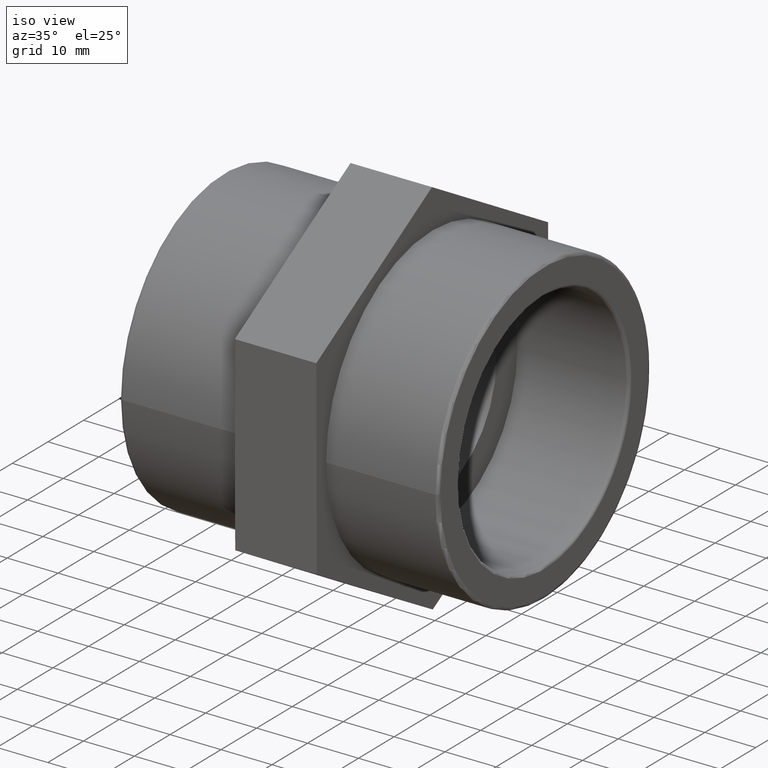
[diagram: clean part render]
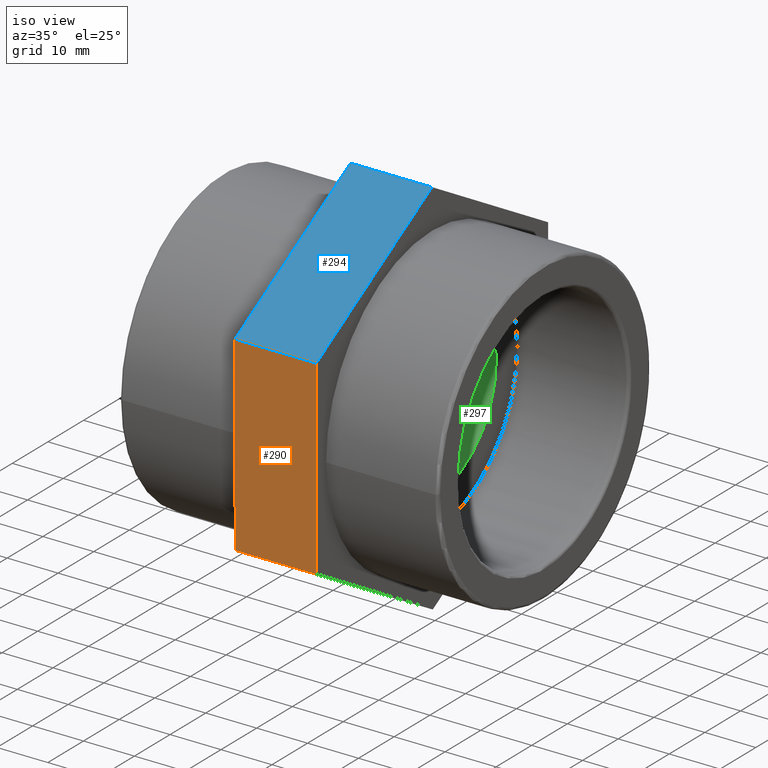
[diagram: same view with three faces highlighted in distinct colors, each labeled with its STEP entity id]
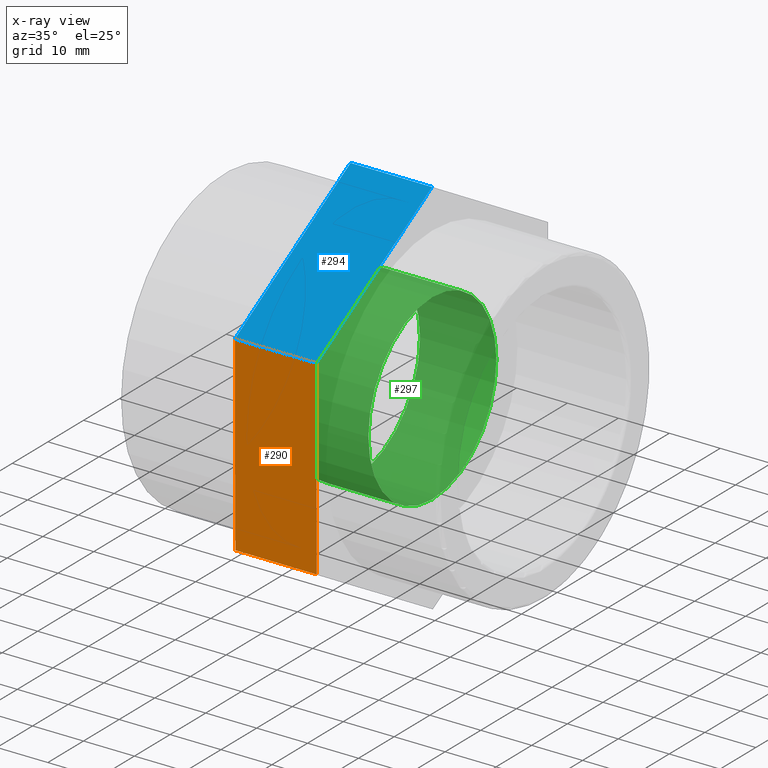
[diagram: x-ray of the same camera — body ghosted, the three highlighted faces saturated]
A machine part, iso view with three faces highlighted in distinct colors.
The next image is the same camera in x-ray (body ghosted, the three faces saturated) — at least one of them is partly hidden behind the body in this view.
Their STEP definitions:

[orange] entity #290 — the highlighted planar face has unit normal (0, -1, -0.003).
#15=LINE('',#466,#33);
#16=LINE('',#468,#34);
#17=LINE('',#470,#35);
#18=LINE('',#471,#36);
#33=VECTOR('',#386,37.5277674973257);
#34=VECTOR('',#387,16.);
#35=VECTOR('',#388,37.5277674973257);
#36=VECTOR('',#389,16.);
#58=PLANE('',#325);
#93=FACE_OUTER_BOUND('',#124,.T.);
#124=EDGE_LOOP('',(#232,#233,#234,#235));
#166=VERTEX_POINT('',#464);
#167=VERTEX_POINT('',#465);
#168=VERTEX_POINT('',#467);
#169=VERTEX_POINT('',#469);
#192=EDGE_CURVE('',#166,#167,#15,.T.);
#193=EDGE_CURVE('',#168,#167,#16,.T.);
#194=EDGE_CURVE('',#168,#169,#17,.T.);
#195=EDGE_CURVE('',#169,#166,#18,.T.);
#232=ORIENTED_EDGE('',*,*,#192,.T.);
#233=ORIENTED_EDGE('',*,*,#193,.F.);
#234=ORIENTED_EDGE('',*,*,#194,.T.);
#235=ORIENTED_EDGE('',*,*,#195,.T.);
#290=ADVANCED_FACE('',(#93),#58,.T.);
#325=AXIS2_PLACEMENT_3D('',#463,#384,#385);
#384=DIRECTION('center_axis',(1.85036358388747E-16,-0.999995609627469,-0.00296322894591864));
#385=DIRECTION('ref_axis',(0.,-0.00296322894591867,0.999995609627469));
#386=DIRECTION('',(-5.44336326564006E-19,0.00296322894591864,-0.999995609627469));
#387=DIRECTION('',(-1.,-1.85037170770858E-16,0.));
#388=DIRECTION('',(5.44336326564006E-19,-0.00296322894591864,0.999995609627469));
#389=DIRECTION('',(-1.,-1.85037170770858E-16,0.));
#463=CARTESIAN_POINT('Origin',(9.50000000000001,-32.4442556294309,-18.8601063089654));
#464=CARTESIAN_POINT('',(-6.49999999999999,-32.5554589963547,18.6674964274807));
#465=CARTESIAN_POINT('',(-6.49999999999999,-32.4442556294309,-18.8601063089654));
#466=CARTESIAN_POINT('',(-6.49999999999999,-32.4720564711618,-9.47820562485388));
#467=CARTESIAN_POINT('',(9.50000000000001,-32.4442556294309,-18.8601063089654));
#468=CARTESIAN_POINT('',(9.50000000000001,-32.4442556294309,-18.8601063089654));
#469=CARTESIAN_POINT('',(9.50000000000001,-32.5554589963546,18.6674964274807));
#470=CARTESIAN_POINT('',(9.50000000000001,-32.4442556294309,-18.8601063089654));
#471=CARTESIAN_POINT('',(9.50000000000001,-32.5554589963546,18.6674964274807));

[blue] entity #294 — the highlighted planar face has unit normal (0, -0.5026, 0.8645).
#18=LINE('',#471,#36);
#26=LINE('',#489,#44);
#29=LINE('',#494,#47);
#30=LINE('',#495,#48);
#36=VECTOR('',#389,16.);
#44=VECTOR('',#403,16.);
#47=VECTOR('',#408,37.5277674973257);
#48=VECTOR('',#409,37.5277674973257);
#62=PLANE('',#329);
#97=FACE_OUTER_BOUND('',#128,.T.);
#128=EDGE_LOOP('',(#248,#249,#250,#251));
#166=VERTEX_POINT('',#464);
#169=VERTEX_POINT('',#469);
#175=VERTEX_POINT('',#486);
#176=VERTEX_POINT('',#488);
#195=EDGE_CURVE('',#169,#166,#18,.T.);
#203=EDGE_CURVE('',#176,#175,#26,.T.);
#206=EDGE_CURVE('',#175,#166,#29,.T.);
#207=EDGE_CURVE('',#169,#176,#30,.T.);
#248=ORIENTED_EDGE('',*,*,#206,.T.);
#249=ORIENTED_EDGE('',*,*,#195,.F.);
#250=ORIENTED_EDGE('',*,*,#207,.T.);
#251=ORIENTED_EDGE('',*,*,#203,.T.);
#294=ADVANCED_FACE('',(#97),#62,.T.);
#329=AXIS2_PLACEMENT_3D('',#493,#406,#407);
#389=DIRECTION('',(-1.,-1.85037170770858E-16,0.));
#403=DIRECTION('',(-1.,-1.85037170770858E-16,0.));
#406=DIRECTION('center_axis',(9.29930274188911E-17,-0.50256403635813,0.864539987137336));
#407=DIRECTION('ref_axis',(-1.77635683940025E-16,0.864539987137336,0.50256403635813));
#408=DIRECTION('',(1.58813419197395E-16,-0.864539987137336,-0.50256403635813));
#409=DIRECTION('',(-1.58813419197395E-16,0.864539987137336,0.50256403635813));
#464=CARTESIAN_POINT('',(-6.49999999999999,-32.5554589963547,18.6674964274807));
#469=CARTESIAN_POINT('',(9.50000000000001,-32.5554589963546,18.6674964274807));
#471=CARTESIAN_POINT('',(9.50000000000001,-32.5554589963546,18.6674964274807));
#486=CARTESIAN_POINT('',(-6.49999999999999,-0.111203366923781,37.5276027364461));
#488=CARTESIAN_POINT('',(9.50000000000001,-0.111203366923778,37.5276027364461));
#489=CARTESIAN_POINT('',(9.50000000000001,-0.111203366923778,37.5276027364461));
#493=CARTESIAN_POINT('Origin',(9.50000000000001,-32.5554589963546,18.6674964274807));
#494=CARTESIAN_POINT('',(-6.49999999999999,-24.4443950889969,23.3825230047221));
#495=CARTESIAN_POINT('',(9.50000000000001,-32.5554589963546,18.6674964274807));

[green] entity #297 — the highlighted cylindrical surface (bore or boss wall) has radius 17.938 mm, axis along (-1, -0, 0).
#55=CYLINDRICAL_SURFACE('',#333,17.938);
#79=FACE_BOUND('',#133,.T.);
#100=FACE_OUTER_BOUND('',#132,.T.);
#132=EDGE_LOOP('',(#258));
#133=EDGE_LOOP('',(#259));
#152=CIRCLE('',#332,17.938);
#153=CIRCLE('',#334,17.938);
#178=VERTEX_POINT('',#500);
#179=VERTEX_POINT('',#503);
#210=EDGE_CURVE('',#178,#178,#152,.T.);
#211=EDGE_CURVE('',#179,#179,#153,.T.);
#258=ORIENTED_EDGE('',*,*,#211,.F.);
#259=ORIENTED_EDGE('',*,*,#210,.T.);
#297=ADVANCED_FACE('',(#100,#79),#55,.F.);
#332=AXIS2_PLACEMENT_3D('',#501,#416,#417);
#333=AXIS2_PLACEMENT_3D('',#502,#418,#419);
#334=AXIS2_PLACEMENT_3D('',#504,#420,#421);
#416=DIRECTION('center_axis',(-1.,-1.83697019872103E-16,0.));
#417=DIRECTION('ref_axis',(0.,0.,1.));
#418=DIRECTION('center_axis',(-1.,-1.83697019872103E-16,0.));
#419=DIRECTION('ref_axis',(1.98055172193138E-16,-1.,0.));
#420=DIRECTION('center_axis',(-1.,-1.83697019872103E-16,0.));
#421=DIRECTION('ref_axis',(0.,0.,1.));
#500=CARTESIAN_POINT('',(-5.50000000000001,-17.938,0.));
#501=CARTESIAN_POINT('Origin',(-5.50000000000001,4.77612251667468E-15,0.));
#502=CARTESIAN_POINT('Origin',(1.99999999999999,6.15385016571545E-15,0.));
#503=CARTESIAN_POINT('',(9.5,-17.938,0.));
#504=CARTESIAN_POINT('Origin',(9.49999999999999,7.53157781475622E-15,0.));